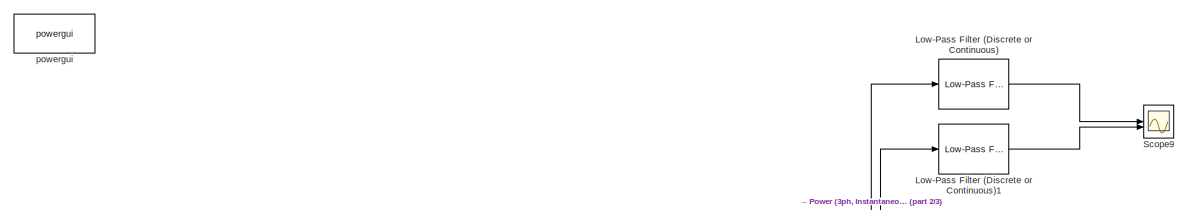
[diagram: root canvas - part 1/3, top center region]
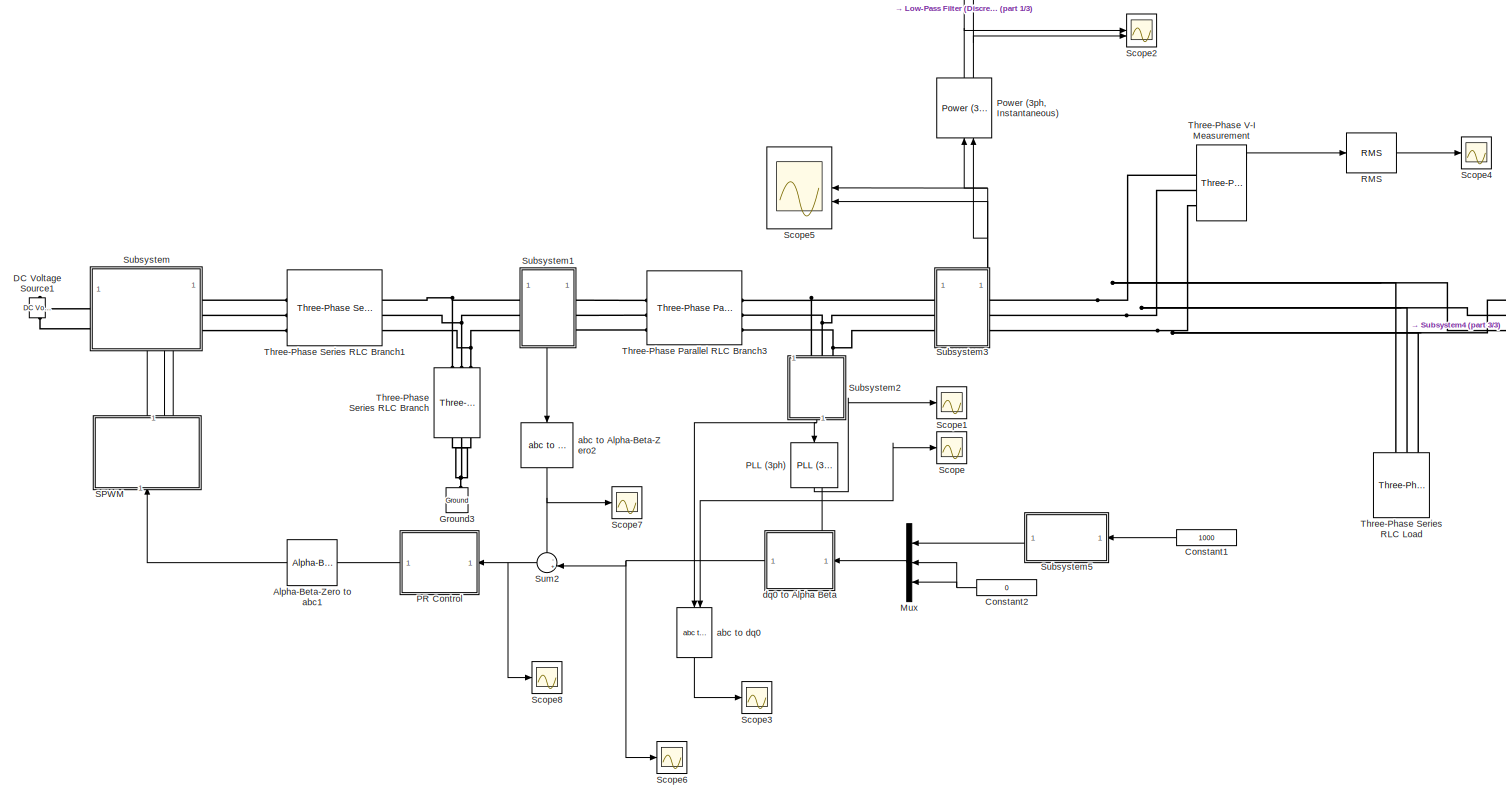
[diagram: root canvas - part 2/3, most of the canvas]
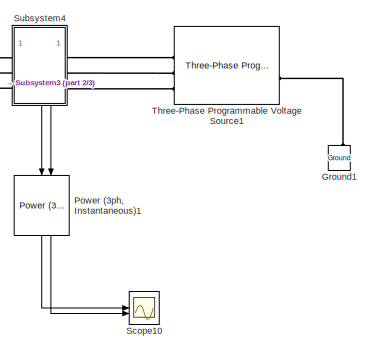
[diagram: root canvas - part 3/3, middle right region]
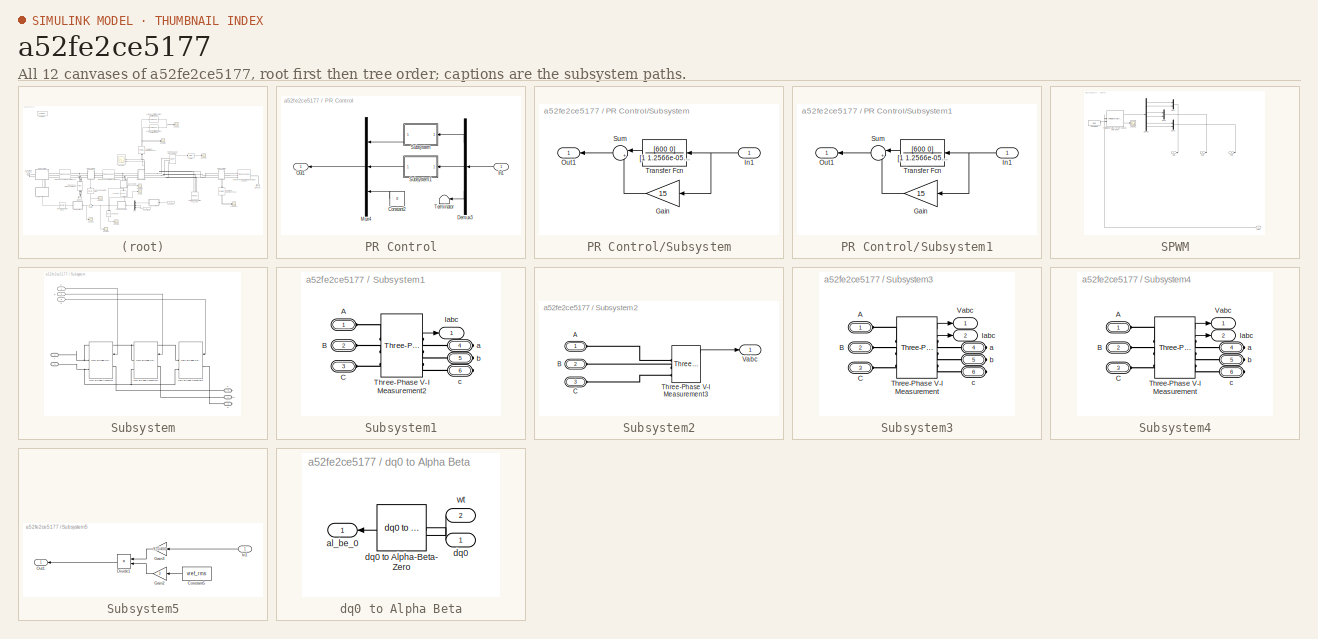
[diagram: thumbnail index - all 12 canvases of the model, root first then tree order]
MODEL slx_a52fe2ce5177
KIND model
CONFIG AbsTol = auto
CONFIG EnableMultiTasking = off
CONFIG FixedStep = 1e-6
CONFIG MaxStep = auto
CONFIG MinStep = auto
CONFIG RelTol = 1e-3
CONFIG SampleTimeConstraint = Unconstrained
CONFIG SolverName = ode4
CONFIG StartTime = 0.0
CONFIG StopTime = 0.8
BLOCK [Reference] Alpha-Beta-Zero to abc1  REF=spsAlphaBetaZerotoabcLib/Alpha-Beta-Zero
to abc
  LibrarySourceBlock = sps_lib/Control/Alpha-Beta-Zero\nto abc
  NameLocation = top
  SourceBlock = spsAlphaBetaZerotoabcLib/Alpha-Beta-Zero\nto abc
  SourceType = Alpha-Beta-Zero to abc Transformation
BLOCK [Constant] Constant1
  NameLocation = top
  Value = 1000
BLOCK [Constant] Constant2
  NameLocation = top
  Value = 0
BLOCK [Reference] DC Voltage Source1  REF=spsDCVoltageSourceLib/DC Voltage Source
  LibrarySourceBlock = sps_lib/Sources/DC Voltage Source
  SourceBlock = spsDCVoltageSourceLib/DC Voltage Source
  SourceType = DC Voltage Source
BLOCK [Reference] Ground1  REF=spsGroundLib/Ground
  LibrarySourceBlock = sps_lib/Utilities/Ground
  NameLocation = right
  SourceBlock = spsGroundLib/Ground
  SourceType = Ground
BLOCK [Reference] Ground3  REF=spsGroundLib/Ground
  LibrarySourceBlock = sps_lib/Utilities/Ground
  NameLocation = right
  SourceBlock = spsGroundLib/Ground
  SourceType = Ground
BLOCK [Reference] Low-Pass Filter (Discrete or Continuous)  REF=eeGeneralControl/Low-Pass Filter
(Discrete or Continuous)
  LibrarySourceBlock = ee_sl_lib/General Control/Low-Pass Filter\n(Discrete or Continuous)
  SourceBlock = eeGeneralControl/Low-Pass Filter\n(Discrete or Continuous)
  SourceType = Low-Pass Filter (Discrete or Continuous)
BLOCK [Reference] Low-Pass Filter (Discrete or Continuous)1  REF=eeGeneralControl/Low-Pass Filter
(Discrete or Continuous)
  LibrarySourceBlock = ee_sl_lib/General Control/Low-Pass Filter\n(Discrete or Continuous)
  SourceBlock = eeGeneralControl/Low-Pass Filter\n(Discrete or Continuous)
  SourceType = Low-Pass Filter (Discrete or Continuous)
BLOCK [Mux] Mux
  DisplayOption = bar
  Inputs = 3
  NameLocation = top
BLOCK [Reference] PLL (3ph)  REF=spsPLL3phLib/PLL
(3ph)
  LibrarySourceBlock = sps_lib/Control/PLL\n(3ph)
  NameLocation = left
  SourceBlock = spsPLL3phLib/PLL\n(3ph)
  SourceType = PLL (3ph)
BLOCK [SubSystem] PR Control
  NameLocation = top
BLOCK [Constant] PR Control/Constant2
  NameLocation = top
  Value = 0
BLOCK [Demux] PR Control/Demux3
  NameLocation = top
  Outputs = 3
BLOCK [Inport] PR Control/In1
BLOCK [Mux] PR Control/Mux4
  DisplayOption = bar
  Inputs = 3
  NameLocation = top
BLOCK [Outport] PR Control/Out1
BLOCK [SubSystem] PR Control/Subsystem
  NameLocation = top
BLOCK [Gain] PR Control/Subsystem/Gain
  Gain = 15
  NameLocation = top
BLOCK [Inport] PR Control/Subsystem/In1
BLOCK [Outport] PR Control/Subsystem/Out1
BLOCK [Sum] PR Control/Subsystem/Sum
  Inputs = |++
  NameLocation = top
BLOCK [TransferFcn] PR Control/Subsystem/Transfer Fcn
  Denominator = [1 1.2566e-05 omega^2]
  NameLocation = top
  Numerator = [600 0]
BLOCK [SubSystem] PR Control/Subsystem1
  NameLocation = top
BLOCK [Gain] PR Control/Subsystem1/Gain
  Gain = 15
  NameLocation = top
BLOCK [Inport] PR Control/Subsystem1/In1
BLOCK [Outport] PR Control/Subsystem1/Out1
BLOCK [Sum] PR Control/Subsystem1/Sum
  Inputs = |++
  NameLocation = top
BLOCK [TransferFcn] PR Control/Subsystem1/Transfer Fcn
  Denominator = [1 1.2566e-05 omega^2]
  NameLocation = top
  Numerator = [600 0]
BLOCK [Terminator] PR Control/Terminator
  NameLocation = top
BLOCK [Reference] Power (3ph, Instantaneous)  REF=spsPower3phInstantaneousLib/Power
(3ph, Instantaneous)
  LibrarySourceBlock = sps_lib/Sensors and Measurements/Power\n(3ph, Instantaneous)
  NameLocation = right
  SourceBlock = spsPower3phInstantaneousLib/Power\n(3ph, Instantaneous)
  SourceType = Power (3ph, Instantaneous)
BLOCK [Reference] Power (3ph, Instantaneous)1  REF=spsPower3phInstantaneousLib/Power
(3ph, Instantaneous)
  LibrarySourceBlock = sps_lib/Sensors and Measurements/Power\n(3ph, Instantaneous)
  NameLocation = left
  SourceBlock = spsPower3phInstantaneousLib/Power\n(3ph, Instantaneous)
  SourceType = Power (3ph, Instantaneous)
BLOCK [Reference] RMS  REF=spsRMSLib/RMS
  LibrarySourceBlock = sps_lib/Sensors and Measurements/RMS
  SourceBlock = spsRMSLib/RMS
  SourceType = RMS
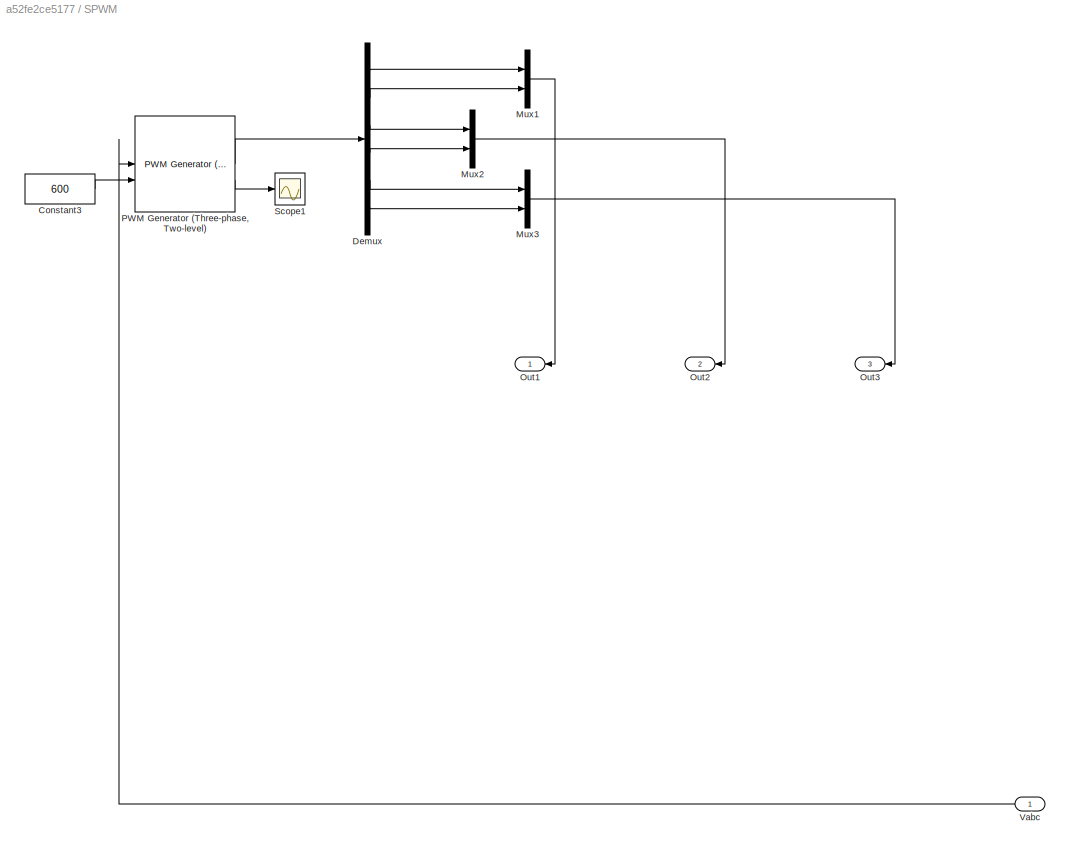
BLOCK [SubSystem] SPWM
  NameLocation = right
BLOCK [Constant] SPWM/Constant3
  Value = 600
BLOCK [Demux] SPWM/Demux
  Outputs = 6
BLOCK [Mux] SPWM/Mux1
  DisplayOption = bar
  Inputs = 2
BLOCK [Mux] SPWM/Mux2
  DisplayOption = bar
  Inputs = 2
BLOCK [Mux] SPWM/Mux3
  DisplayOption = bar
  Inputs = 2
BLOCK [Outport] SPWM/Out1
BLOCK [Outport] SPWM/Out2
  Port = 2
BLOCK [Outport] SPWM/Out3
  Port = 3
BLOCK [Reference] SPWM/PWM Generator (Three-phase, Two-level)  REF=eePwmGeneratorTwoLevel/PWM Generator
(Three-phase, Two-level)
  LibrarySourceBlock = ee_sl_lib/Pulse Width\nModulation/PWM Generator\n(Three-phase, Two-level)
  SourceBlock = eePwmGeneratorTwoLevel/PWM Generator\n(Three-phase, Two-level)
  SourceType = PWM Generator (three-phase, two-level)
BLOCK [Scope] SPWM/Scope1
  Floating = off
  NumInputPorts = 1
  ScopeSpecificationString = Simulink.scopes.TimeScopeBlockCfg('CurrentConfiguration', extmgr.ConfigurationSet(extmgr.Configuration('Core','General UI',true),extmgr.Configuration('Core','Source UI',true),extmgr.Configuration('Sources','WiredSimulink',true,'DataLoggingVariableName','ScopeData1'),extmgr.Configuration('Visuals','Time Domain',true,'SerializedDisplays',{struct('MinYLimReal','-1.07185','MaxYLimReal','1.0145','YLabe...<+1539ch>
BLOCK [Inport] SPWM/Vabc
BLOCK [Scope] Scope
  Floating = off
  NumInputPorts = 1
  ScopeSpecificationString = Simulink.scopes.TimeScopeBlockCfg('CurrentConfiguration', extmgr.ConfigurationSet(extmgr.Configuration('Core','General UI',true),extmgr.Configuration('Core','Source UI',true),extmgr.Configuration('Sources','WiredSimulink',true,'DataLoggingVariableName','ScopeData1'),extmgr.Configuration('Visuals','Time Domain',true,'SerializedDisplays',{struct('MinYLimReal','-0.27634','MaxYLimReal','6.54242','YLab...<+1420ch>
BLOCK [Scope] Scope1
  Floating = off
  NumInputPorts = 1
  ScopeSpecificationString = Simulink.scopes.TimeScopeBlockCfg('CurrentConfiguration', extmgr.ConfigurationSet(extmgr.Configuration('Core','General UI',true),extmgr.Configuration('Core','Source UI',true),extmgr.Configuration('Sources','WiredSimulink',true,'DataLoggingVariableName','ScopeData2'),extmgr.Configuration('Visuals','Time Domain',true,'SerializedDisplays',{struct('MinYLimReal','49.98929','MaxYLimReal','50.01415','YLa...<+1407ch>
BLOCK [Scope] Scope10
  Floating = off
  NumInputPorts = 2
  ScopeSpecificationString = Simulink.scopes.TimeScopeBlockCfg('CurrentConfiguration', extmgr.ConfigurationSet(extmgr.Configuration('Core','General UI',true),extmgr.Configuration('Core','Source UI',true),extmgr.Configuration('Sources','WiredSimulink',true,'DataLoggingVariableName','ScopeData2'),extmgr.Configuration('Visuals','Time Domain',true,'SerializedDisplays',{struct('MinYLimReal','-7290.06936','MaxYLimReal','10971.90077...<+1831ch>
BLOCK [Scope] Scope2
  Floating = off
  NumInputPorts = 2
  ScopeSpecificationString = Simulink.scopes.TimeScopeBlockCfg('CurrentConfiguration', extmgr.ConfigurationSet(extmgr.Configuration('Core','General UI',true),extmgr.Configuration('Core','Source UI',true),extmgr.Configuration('Sources','WiredSimulink',true,'DataLoggingVariableName','ScopeData4'),extmgr.Configuration('Visuals','Time Domain',true,'SerializedDisplays',{struct('MinYLimReal','-10179.2154','MaxYLimReal','2073.62642'...<+1878ch>
BLOCK [Scope] Scope3
  Floating = off
  NumInputPorts = 1
  ScopeSpecificationString = Simulink.scopes.TimeScopeBlockCfg('CurrentConfiguration', extmgr.ConfigurationSet(extmgr.Configuration('Core','General UI',true),extmgr.Configuration('Core','Source UI',true),extmgr.Configuration('Sources','WiredSimulink',true,'DataLoggingVariableName','ScopeData5'),extmgr.Configuration('Visuals','Time Domain',true,'SerializedDisplays',{struct('MinYLimReal','297.8584','MaxYLimReal','301.30283','YL...<+1461ch>
BLOCK [Scope] Scope4
  Floating = off
  NumInputPorts = 1
  ScopeSpecificationString = Simulink.scopes.TimeScopeBlockCfg('CurrentConfiguration', extmgr.ConfigurationSet(extmgr.Configuration('Core','General UI',true),extmgr.Configuration('Core','Source UI',true),extmgr.Configuration('Sources','WiredSimulink',true,'DataLoggingVariableName','ScopeData1'),extmgr.Configuration('Visuals','Time Domain',true,'SerializedDisplays',{struct('MinYLimReal','366.95579','MaxYLimReal','367.46138','Y...<+1472ch>
BLOCK [Scope] Scope5
  Floating = off
  NameLocation = top
  NumInputPorts = 2
  ScopeSpecificationString = Simulink.scopes.TimeScopeBlockCfg('CurrentConfiguration', extmgr.ConfigurationSet(extmgr.Configuration('Core','General UI',true),extmgr.Configuration('Core','Source UI',true),extmgr.Configuration('Sources','WiredSimulink',true,'DataLoggingVariableName','ScopeData3','DataLogging',true,'DataLoggingSaveFormat','StructureWithTime'),extmgr.Configuration('Visuals','Time Domain',true,'SerializedDisplays'...<+2680ch>
BLOCK [Scope] Scope6
  Floating = off
  NumInputPorts = 1
  ScopeSpecificationString = Simulink.scopes.TimeScopeBlockCfg('CurrentConfiguration', extmgr.ConfigurationSet(extmgr.Configuration('Core','General UI',true),extmgr.Configuration('Core','Source UI',true),extmgr.Configuration('Sources','WiredSimulink',true,'DataLoggingVariableName','ScopeData7'),extmgr.Configuration('Visuals','Time Domain',true,'SerializedDisplays',{struct('MinYLimReal','-1.13419','MaxYLimReal','1.13419','YLab...<+1453ch>
BLOCK [Scope] Scope7
  Floating = off
  NumInputPorts = 1
  ScopeSpecificationString = Simulink.scopes.TimeScopeBlockCfg('CurrentConfiguration', extmgr.ConfigurationSet(extmgr.Configuration('Core','General UI',true),extmgr.Configuration('Core','Source UI',true),extmgr.Configuration('Sources','WiredSimulink',true,'DataLoggingVariableName','ScopeData1'),extmgr.Configuration('Visuals','Time Domain',true,'SerializedDisplays',{struct('MinYLimReal','-21.92293','MaxYLimReal','23.09781','YL...<+1477ch>
BLOCK [Scope] Scope8
  Floating = off
  NumInputPorts = 1
  ScopeSpecificationString = Simulink.scopes.TimeScopeBlockCfg('CurrentConfiguration', extmgr.ConfigurationSet(extmgr.Configuration('Core','General UI',true),extmgr.Configuration('Core','Source UI',true),extmgr.Configuration('Sources','WiredSimulink',true,'DataLoggingVariableName','ScopeData2'),extmgr.Configuration('Visuals','Time Domain',true,'SerializedDisplays',{struct('MinYLimReal','-2.32177','MaxYLimReal','1.88319','YLab...<+1433ch>
BLOCK [Scope] Scope9
  Floating = off
  NumInputPorts = 2
  ScopeSpecificationString = Simulink.scopes.TimeScopeBlockCfg('CurrentConfiguration', extmgr.ConfigurationSet(extmgr.Configuration('Core','General UI',true),extmgr.Configuration('Core','Source UI',true),extmgr.Configuration('Sources','WiredSimulink',true,'DataLoggingVariableName','ScopeData1'),extmgr.Configuration('Visuals','Time Domain',true,'SerializedDisplays',{struct('MinYLimReal','-9812.26739','MaxYLimReal','2032.85442'...<+1542ch>
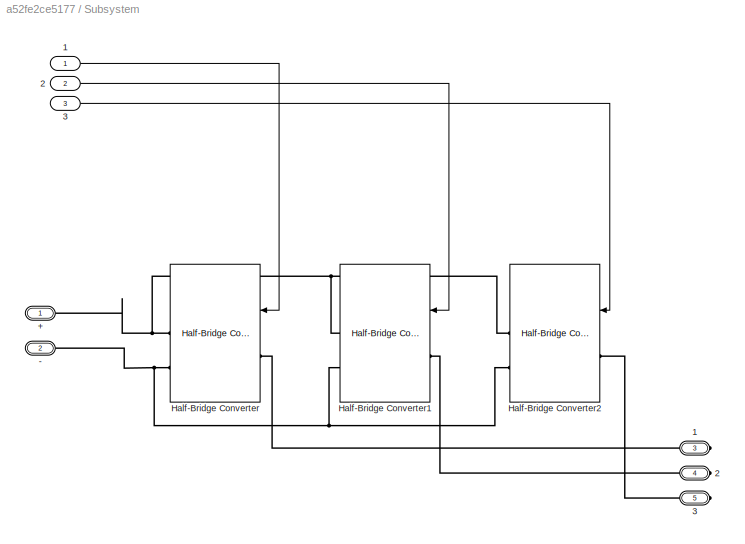
BLOCK [SubSystem] Subsystem
  PortSchema = {"entries":[{"content":{"sides":[{"content":{"connectorIds":["LConn1","LConn2"]},"type":"ConnectorPlacement.EquallySpacedRectSide","uuid":"21765539-0567-4900-b052-fb0c809e49e6"},{"content":{"connectorIds":["RConn1","RConn2","RConn3"],"side":"RIGHT"},"type":"ConnectorPlacement.EquallySpacedRectSide","uuid":"da60e673-aefd-4ef6-b5b1-e42a137712f7"},{"content":{"side":"TOP"},"type":"ConnectorPlacement....<+415ch>
BLOCK [Inport] Subsystem/  2
  Port = 2
BLOCK [Inport] Subsystem/  3
  Port = 3
BLOCK [Inport] Subsystem/ 1 
BLOCK [PMIOPort] Subsystem/+
  Side = Left
BLOCK [PMIOPort] Subsystem/-
  Port = 2
  Side = Left
BLOCK [PMIOPort] Subsystem/1
  Port = 3
  Side = Right
BLOCK [PMIOPort] Subsystem/2
  Port = 4
  Side = Right
BLOCK [PMIOPort] Subsystem/3
  Port = 5
  Side = Right
BLOCK [Reference] Subsystem/Half-Bridge Converter  REF=spsHalfBridgeConverterLib/Half-Bridge Converter
  LibrarySourceBlock = sps_lib/Power Electronics/Half-Bridge Converter
  SourceBlock = spsHalfBridgeConverterLib/Half-Bridge Converter
  SourceType = Half-Bridge Converter
BLOCK [Reference] Subsystem/Half-Bridge Converter1  REF=spsHalfBridgeConverterLib/Half-Bridge Converter
  LibrarySourceBlock = sps_lib/Power Electronics/Half-Bridge Converter
  SourceBlock = spsHalfBridgeConverterLib/Half-Bridge Converter
  SourceType = Half-Bridge Converter
BLOCK [Reference] Subsystem/Half-Bridge Converter2  REF=spsHalfBridgeConverterLib/Half-Bridge Converter
  LibrarySourceBlock = sps_lib/Power Electronics/Half-Bridge Converter
  SourceBlock = spsHalfBridgeConverterLib/Half-Bridge Converter
  SourceType = Half-Bridge Converter
BLOCK [SubSystem] Subsystem1
  PortSchema = {"entries":[{"content":{"sides":[{"content":{"connectorIds":["LConn1","LConn2","LConn3"]},"type":"ConnectorPlacement.EquallySpacedRectSide","uuid":"5e649b81-8d67-47fb-b51d-7fa1d294a0fa"},{"content":{"connectorIds":["RConn1","RConn2","RConn3"],"side":"RIGHT"},"type":"ConnectorPlacement.EquallySpacedRectSide","uuid":"b8ce6232-1e24-4620-bb1d-7a04b9b53c9d"},{"content":{"side":"TOP"},"type":"ConnectorP...<+413ch>
BLOCK [PMIOPort] Subsystem1/A
  Side = Left
BLOCK [PMIOPort] Subsystem1/B
  Port = 2
  Side = Left
BLOCK [PMIOPort] Subsystem1/C
  Port = 3
  Side = Left
BLOCK [Outport] Subsystem1/Iabc
BLOCK [Reference] Subsystem1/Three-Phase V-I Measurement2  REF=spsThreePhaseVIMeasurementLib/Three-Phase
V-I Measurement
  LibrarySourceBlock = sps_lib/Sensors and Measurements/Three-Phase\nV-I Measurement
  SourceBlock = spsThreePhaseVIMeasurementLib/Three-Phase\nV-I Measurement
  SourceType = Three-Phase VI Measurement
BLOCK [PMIOPort] Subsystem1/a
  Port = 4
  Side = Right
BLOCK [PMIOPort] Subsystem1/b
  Port = 5
  Side = Right
BLOCK [PMIOPort] Subsystem1/c
  Port = 6
  Side = Right
BLOCK [SubSystem] Subsystem2
BLOCK [PMIOPort] Subsystem2/A
  Side = Left
BLOCK [PMIOPort] Subsystem2/B
  Port = 2
  Side = Left
BLOCK [PMIOPort] Subsystem2/C
  Port = 3
  Side = Left
BLOCK [Reference] Subsystem2/Three-Phase V-I Measurement3  REF=spsThreePhaseVIMeasurementLib/Three-Phase
V-I Measurement
  LibrarySourceBlock = sps_lib/Sensors and Measurements/Three-Phase\nV-I Measurement
  SourceBlock = spsThreePhaseVIMeasurementLib/Three-Phase\nV-I Measurement
  SourceType = Three-Phase VI Measurement
BLOCK [Outport] Subsystem2/Vabc
BLOCK [SubSystem] Subsystem3
  PortSchema = {"entries":[{"content":{"sides":[{"content":{"connectorIds":["LConn1","LConn2","LConn3"]},"type":"ConnectorPlacement.EquallySpacedRectSide","uuid":"5e649b81-8d67-47fb-b51d-7fa1d294a0fa"},{"content":{"connectorIds":["RConn1","RConn2","RConn3"],"side":"RIGHT"},"type":"ConnectorPlacement.EquallySpacedRectSide","uuid":"b8ce6232-1e24-4620-bb1d-7a04b9b53c9d"},{"content":{"connectorIds":["Out1","Out2"],"...<+294ch>
BLOCK [PMIOPort] Subsystem3/A
  Side = Left
BLOCK [PMIOPort] Subsystem3/B
  Port = 2
  Side = Left
BLOCK [PMIOPort] Subsystem3/C
  Port = 3
  Side = Left
BLOCK [Outport] Subsystem3/Iabc
  Port = 2
BLOCK [Reference] Subsystem3/Three-Phase V-I Measurement  REF=spsThreePhaseVIMeasurementLib/Three-Phase
V-I Measurement
  LibrarySourceBlock = sps_lib/Sensors and Measurements/Three-Phase\nV-I Measurement
  SourceBlock = spsThreePhaseVIMeasurementLib/Three-Phase\nV-I Measurement
  SourceType = Three-Phase VI Measurement
BLOCK [Outport] Subsystem3/Vabc
BLOCK [PMIOPort] Subsystem3/a
  Port = 4
  Side = Right
BLOCK [PMIOPort] Subsystem3/b
  Port = 5
  Side = Right
BLOCK [PMIOPort] Subsystem3/c
  Port = 6
  Side = Right
BLOCK [SubSystem] Subsystem4
  NameLocation = top
  PortSchema = {"entries":[{"content":{"sides":[{"content":{"connectorIds":["LConn1","LConn2","LConn3"]},"type":"ConnectorPlacement.EquallySpacedRectSide","uuid":"5e649b81-8d67-47fb-b51d-7fa1d294a0fa"},{"content":{"connectorIds":["RConn1","RConn2","RConn3"],"side":"RIGHT"},"type":"ConnectorPlacement.EquallySpacedRectSide","uuid":"b8ce6232-1e24-4620-bb1d-7a04b9b53c9d"},{"content":{"connectorIds":["Out1","Out2"],"...<+294ch>
BLOCK [PMIOPort] Subsystem4/A
  Side = Left
BLOCK [PMIOPort] Subsystem4/B
  Port = 2
  Side = Left
BLOCK [PMIOPort] Subsystem4/C
  Port = 3
  Side = Left
BLOCK [Outport] Subsystem4/Iabc
  Port = 2
BLOCK [Reference] Subsystem4/Three-Phase V-I Measurement  REF=spsThreePhaseVIMeasurementLib/Three-Phase
V-I Measurement
  LibrarySourceBlock = sps_lib/Sensors and Measurements/Three-Phase\nV-I Measurement
  SourceBlock = spsThreePhaseVIMeasurementLib/Three-Phase\nV-I Measurement
  SourceType = Three-Phase VI Measurement
BLOCK [Outport] Subsystem4/Vabc
BLOCK [PMIOPort] Subsystem4/a
  Port = 4
  Side = Right
BLOCK [PMIOPort] Subsystem4/b
  Port = 5
  Side = Right
BLOCK [PMIOPort] Subsystem4/c
  Port = 6
  Side = Right
BLOCK [SubSystem] Subsystem5
  NameLocation = top
BLOCK [Constant] Subsystem5/Constant5
  NameLocation = top
  Value = vref_rms
BLOCK [Product] Subsystem5/Divide1
  Inputs = */
  NameLocation = top
BLOCK [Gain] Subsystem5/Gain2
  Gain = 3
  NameLocation = top
BLOCK [Gain] Subsystem5/Gain3
  Gain = 975/400
  NameLocation = top
BLOCK [Inport] Subsystem5/In1
BLOCK [Outport] Subsystem5/Out1
BLOCK [Sum] Sum2
  Inputs = -+|
  NameLocation = top
BLOCK [Reference] Three-Phase Parallel RLC Branch3  REF=spsThreePhaseParallelRLCBranchLib/Three-Phase
Parallel RLC Branch
  AttributesFormatString = \n
  LibrarySourceBlock = sps_lib/Passives/Three-Phase\nParallel RLC Branch
  SourceBlock = spsThreePhaseParallelRLCBranchLib/Three-Phase\nParallel RLC Branch
  SourceType = Three-Phase Parallel RLC Branch
BLOCK [Reference] Three-Phase Programmable Voltage Source1  REF=spsThreePhaseProgrammableVoltageSourceLib/Three-Phase
Programmable
Voltage Source
  LibrarySourceBlock = sps_lib/Sources/Three-Phase\nProgrammable\nVoltage Source
  NameLocation = top
  SourceBlock = spsThreePhaseProgrammableVoltageSourceLib/Three-Phase\nProgrammable\nVoltage Source
  SourceType = Three-Phase Programmable Voltage Source
BLOCK [Reference] Three-Phase Series RLC Branch  REF=spsThreePhaseSeriesRLCBranchLib/Three-Phase
Series RLC Branch
  AttributesFormatString = \n
  LibrarySourceBlock = sps_lib/Passives/Three-Phase\nSeries RLC Branch
  NameLocation = left
  SourceBlock = spsThreePhaseSeriesRLCBranchLib/Three-Phase\nSeries RLC Branch
  SourceType = Three-Phase Series RLC Branch
BLOCK [Reference] Three-Phase Series RLC Branch1  REF=spsThreePhaseSeriesRLCBranchLib/Three-Phase
Series RLC Branch
  AttributesFormatString = \n
  LibrarySourceBlock = sps_lib/Passives/Three-Phase\nSeries RLC Branch
  SourceBlock = spsThreePhaseSeriesRLCBranchLib/Three-Phase\nSeries RLC Branch
  SourceType = Three-Phase Series RLC Branch
BLOCK [Reference] Three-Phase Series RLC Load  REF=spsThreePhaseSeriesRLCLoadLib/Three-Phase
Series RLC Load
  AttributesFormatString = \n
  LibrarySourceBlock = sps_lib/Passives/Three-Phase\nSeries RLC Load
  SourceBlock = spsThreePhaseSeriesRLCLoadLib/Three-Phase\nSeries RLC Load
  SourceType = Three-Phase Series RLC Load
BLOCK [Reference] Three-Phase V-I Measurement  REF=spsThreePhaseVIMeasurementLib/Three-Phase
V-I Measurement
  LibrarySourceBlock = sps_lib/Sensors and Measurements/Three-Phase\nV-I Measurement
  SourceBlock = spsThreePhaseVIMeasurementLib/Three-Phase\nV-I Measurement
  SourceType = Three-Phase VI Measurement
BLOCK [Reference] abc to Alpha-Beta-Zero2  REF=spsabctoAlphaBetaZeroLib/abc to
Alpha-Beta-Zero
  LibrarySourceBlock = sps_lib/Control/abc to\nAlpha-Beta-Zero
  NameLocation = left
  SourceBlock = spsabctoAlphaBetaZeroLib/abc to\nAlpha-Beta-Zero
  SourceType = abc to Alpha-Beta-Zero Transformation
BLOCK [Reference] abc to dq0  REF=spsabctodq0Lib/abc to dq0
  LibrarySourceBlock = sps_lib/Control/abc to dq0
  NameLocation = left
  SourceBlock = spsabctodq0Lib/abc to dq0
  SourceType = abc to dq0 Transformation
BLOCK [SubSystem] dq0 to Alpha Beta
  PortSchema = {"entries":[{"content":{"sides":[{"content":{"connectorIds":["In1"]},"type":"ConnectorPlacement.EquallySpacedRectSide","uuid":"2957cf7a-c1c3-4848-9407-b6952c647f30"},{"content":{"connectorIds":["Out1"],"side":"RIGHT"},"type":"ConnectorPlacement.EquallySpacedRectSide","uuid":"7a8beffb-254d-479d-a697-96ba44ae1442"},{"content":{"connectorIds":["In2"],"side":"TOP"},"type":"ConnectorPlacement.EquallySp...<+245ch>
BLOCK [Outport] dq0 to Alpha Beta/al_be_0
BLOCK [Inport] dq0 to Alpha Beta/dq0
BLOCK [Reference] dq0 to Alpha Beta/dq0 to Alpha-Beta-Zero  REF=spsdq0toAlphaBetaZeroLib/dq0 to
Alpha-Beta-Zero
  LibrarySourceBlock = sps_lib/Control/dq0 to\nAlpha-Beta-Zero
  NameLocation = top
  SourceBlock = spsdq0toAlphaBetaZeroLib/dq0 to\nAlpha-Beta-Zero
  SourceType = dq0 to Alpha-Beta-Zero Transformation
BLOCK [Inport] dq0 to Alpha Beta/wt
  Port = 2
BLOCK [Reference] powergui  REF=spspowerguiLib/powergui
  LibrarySourceBlock = sps_lib/powergui
  Priority = 1
  SourceBlock = spspowerguiLib/powergui
  SourceType = PSB option menu block
LINE Alpha-Beta-Zero to abc1:1 -> SPWM:1
LINE Constant1:1 -> Subsystem5:1
NET Constant2:1 -> Mux:2, Mux:3
LINE Low-Pass Filter (Discrete or Continuous)1:1 -> Scope9:2
LINE Low-Pass Filter (Discrete or Continuous):1 -> Scope9:1
LINE Mux:1 -> dq0 to Alpha Beta:1
LINE PLL (3ph):1 -> Scope1:1
NET PLL (3ph):2 -> Scope:1, abc to dq0:2, dq0 to Alpha Beta:2
LINE PR Control/Constant2:1 -> PR Control/Mux4:3
LINE PR Control/Demux3:1 -> PR Control/Subsystem:1
LINE PR Control/Demux3:2 -> PR Control/Subsystem1:1
LINE PR Control/Demux3:3 -> PR Control/Terminator:1
LINE PR Control/In1:1 -> PR Control/Demux3:1
LINE PR Control/Mux4:1 -> PR Control/Out1:1
LINE PR Control/Subsystem/Gain:1 -> PR Control/Subsystem/Sum:2
NET PR Control/Subsystem/In1:1 -> PR Control/Subsystem/Gain:1, PR Control/Subsystem/Transfer Fcn:1
LINE PR Control/Subsystem/Sum:1 -> PR Control/Subsystem/Out1:1
LINE PR Control/Subsystem/Transfer Fcn:1 -> PR Control/Subsystem/Sum:1
LINE PR Control/Subsystem1/Gain:1 -> PR Control/Subsystem1/Sum:2
NET PR Control/Subsystem1/In1:1 -> PR Control/Subsystem1/Gain:1, PR Control/Subsystem1/Transfer Fcn:1
LINE PR Control/Subsystem1/Sum:1 -> PR Control/Subsystem1/Out1:1
LINE PR Control/Subsystem1/Transfer Fcn:1 -> PR Control/Subsystem1/Sum:1
LINE PR Control/Subsystem1:1 -> PR Control/Mux4:2
LINE PR Control/Subsystem:1 -> PR Control/Mux4:1
LINE PR Control:1 -> Alpha-Beta-Zero to abc1:1
LINE Power (3ph, Instantaneous)1:1 -> Scope10:1
LINE Power (3ph, Instantaneous)1:2 -> Scope10:2
NET Power (3ph, Instantaneous):1 -> Low-Pass Filter (Discrete or Continuous):1, Scope2:1
NET Power (3ph, Instantaneous):2 -> Low-Pass Filter (Discrete or Continuous)1:1, Scope2:2
LINE RMS:1 -> Scope4:1
LINE SPWM/Constant3:1 -> SPWM/PWM Generator (Three-phase, Two-level):2
LINE SPWM/Demux:1 -> SPWM/Mux1:1
LINE SPWM/Demux:2 -> SPWM/Mux1:2
LINE SPWM/Demux:3 -> SPWM/Mux2:1
LINE SPWM/Demux:4 -> SPWM/Mux2:2
LINE SPWM/Demux:5 -> SPWM/Mux3:1
LINE SPWM/Demux:6 -> SPWM/Mux3:2
LINE SPWM/Mux1:1 -> SPWM/Out1:1
LINE SPWM/Mux2:1 -> SPWM/Out2:1
LINE SPWM/Mux3:1 -> SPWM/Out3:1
LINE SPWM/PWM Generator (Three-phase, Two-level):1 -> SPWM/Demux:1
LINE SPWM/PWM Generator (Three-phase, Two-level):2 -> SPWM/Scope1:1
LINE SPWM/Vabc:1 -> SPWM/PWM Generator (Three-phase, Two-level):1
LINE SPWM:1 -> Subsystem:1
LINE SPWM:2 -> Subsystem:2
LINE SPWM:3 -> Subsystem:3
LINE Subsystem/  2:1 -> Subsystem/Half-Bridge Converter1:1
LINE Subsystem/  3:1 -> Subsystem/Half-Bridge Converter2:1
LINE Subsystem/ 1 :1 -> Subsystem/Half-Bridge Converter:1
LINE Subsystem1/Three-Phase V-I Measurement2:2 -> Subsystem1/Iabc:1
LINE Subsystem1:1 -> abc to Alpha-Beta-Zero2:1
LINE Subsystem2/Three-Phase V-I Measurement3:1 -> Subsystem2/Vabc:1
NET Subsystem2:1 -> PLL (3ph):1, abc to dq0:1
LINE Subsystem3/Three-Phase V-I Measurement:1 -> Subsystem3/Vabc:1
LINE Subsystem3/Three-Phase V-I Measurement:2 -> Subsystem3/Iabc:1
NET Subsystem3:1 -> Power (3ph, Instantaneous):1, Scope5:1
NET Subsystem3:2 -> Power (3ph, Instantaneous):2, Scope5:2
LINE Subsystem4/Three-Phase V-I Measurement:1 -> Subsystem4/Vabc:1
LINE Subsystem4/Three-Phase V-I Measurement:2 -> Subsystem4/Iabc:1
LINE Subsystem4:1 -> Power (3ph, Instantaneous)1:1
LINE Subsystem4:2 -> Power (3ph, Instantaneous)1:2
LINE Subsystem5/Constant5:1 -> Subsystem5/Gain2:1
LINE Subsystem5/Divide1:1 -> Subsystem5/Out1:1
LINE Subsystem5/Gain2:1 -> Subsystem5/Divide1:2
LINE Subsystem5/Gain3:1 -> Subsystem5/Divide1:1
LINE Subsystem5/In1:1 -> Subsystem5/Gain3:1
LINE Subsystem5:1 -> Mux:1
NET Sum2:1 -> PR Control:1, Scope8:1
LINE Three-Phase V-I Measurement:1 -> RMS:1
NET abc to Alpha-Beta-Zero2:1 -> Scope7:1, Sum2:1
LINE abc to dq0:1 -> Scope3:1
LINE dq0 to Alpha Beta/dq0 to Alpha-Beta-Zero:1 -> dq0 to Alpha Beta/al_be_0:1
LINE dq0 to Alpha Beta/dq0:1 -> dq0 to Alpha Beta/dq0 to Alpha-Beta-Zero:1
LINE dq0 to Alpha Beta/wt:1 -> dq0 to Alpha Beta/dq0 to Alpha-Beta-Zero:2
NET dq0 to Alpha Beta:1 -> Scope6:1, Sum2:2
PLINE DC Voltage Source1:LConn1 -- Subsystem:LConn2
PLINE DC Voltage Source1:RConn1 -- Subsystem:LConn1
PLINE Ground1:LConn1 -- Three-Phase Programmable Voltage Source1:LConn1
PNET net1: Ground3:LConn1 -- Three-Phase Series RLC Branch:RConn1 -- Three-Phase Series RLC Branch:RConn2 -- Three-Phase Series RLC Branch:RConn3
PNET net2: Subsystem/+:RConn1 -- Subsystem/Half-Bridge Converter1:RConn1 -- Subsystem/Half-Bridge Converter2:RConn1 -- Subsystem/Half-Bridge Converter:RConn1
PNET net3: Subsystem/-:RConn1 -- Subsystem/Half-Bridge Converter1:RConn2 -- Subsystem/Half-Bridge Converter2:RConn2 -- Subsystem/Half-Bridge Converter:RConn2
PLINE Subsystem/1:RConn1 -- Subsystem/Half-Bridge Converter:LConn1
PLINE Subsystem/2:RConn1 -- Subsystem/Half-Bridge Converter1:LConn1
PLINE Subsystem/3:RConn1 -- Subsystem/Half-Bridge Converter2:LConn1
PLINE Subsystem1/A:RConn1 -- Subsystem1/Three-Phase V-I Measurement2:LConn1
PLINE Subsystem1/B:RConn1 -- Subsystem1/Three-Phase V-I Measurement2:LConn2
PLINE Subsystem1/C:RConn1 -- Subsystem1/Three-Phase V-I Measurement2:LConn3
PLINE Subsystem1/Three-Phase V-I Measurement2:RConn1 -- Subsystem1/a:RConn1
PLINE Subsystem1/Three-Phase V-I Measurement2:RConn2 -- Subsystem1/b:RConn1
PLINE Subsystem1/Three-Phase V-I Measurement2:RConn3 -- Subsystem1/c:RConn1
PNET net4: Subsystem1:LConn1 -- Three-Phase Series RLC Branch1:RConn1 -- Three-Phase Series RLC Branch:LConn1
PNET net5: Subsystem1:LConn2 -- Three-Phase Series RLC Branch1:RConn2 -- Three-Phase Series RLC Branch:LConn2
PNET net6: Subsystem1:LConn3 -- Three-Phase Series RLC Branch1:RConn3 -- Three-Phase Series RLC Branch:LConn3
PLINE Subsystem1:RConn1 -- Three-Phase Parallel RLC Branch3:LConn1
PLINE Subsystem1:RConn2 -- Three-Phase Parallel RLC Branch3:LConn2
PLINE Subsystem1:RConn3 -- Three-Phase Parallel RLC Branch3:LConn3
PLINE Subsystem2/A:RConn1 -- Subsystem2/Three-Phase V-I Measurement3:LConn1
PLINE Subsystem2/B:RConn1 -- Subsystem2/Three-Phase V-I Measurement3:LConn2
PLINE Subsystem2/C:RConn1 -- Subsystem2/Three-Phase V-I Measurement3:LConn3
PNET net7: Subsystem2:LConn1 -- Subsystem3:LConn1 -- Three-Phase Parallel RLC Branch3:RConn1
PNET net8: Subsystem2:LConn2 -- Subsystem3:LConn2 -- Three-Phase Parallel RLC Branch3:RConn2
PNET net9: Subsystem2:LConn3 -- Subsystem3:LConn3 -- Three-Phase Parallel RLC Branch3:RConn3
PLINE Subsystem3/A:RConn1 -- Subsystem3/Three-Phase V-I Measurement:LConn1
PLINE Subsystem3/B:RConn1 -- Subsystem3/Three-Phase V-I Measurement:LConn2
PLINE Subsystem3/C:RConn1 -- Subsystem3/Three-Phase V-I Measurement:LConn3
PLINE Subsystem3/Three-Phase V-I Measurement:RConn1 -- Subsystem3/a:RConn1
PLINE Subsystem3/Three-Phase V-I Measurement:RConn2 -- Subsystem3/b:RConn1
PLINE Subsystem3/Three-Phase V-I Measurement:RConn3 -- Subsystem3/c:RConn1
PNET net10: Subsystem3:RConn1 -- Subsystem4:RConn3 -- Three-Phase Series RLC Load:LConn1 -- Three-Phase V-I Measurement:LConn1
PNET net11: Subsystem3:RConn2 -- Subsystem4:RConn2 -- Three-Phase Series RLC Load:LConn2 -- Three-Phase V-I Measurement:LConn2
PNET net12: Subsystem3:RConn3 -- Subsystem4:RConn1 -- Three-Phase Series RLC Load:LConn3 -- Three-Phase V-I Measurement:LConn3
PLINE Subsystem4/A:RConn1 -- Subsystem4/Three-Phase V-I Measurement:LConn1
PLINE Subsystem4/B:RConn1 -- Subsystem4/Three-Phase V-I Measurement:LConn2
PLINE Subsystem4/C:RConn1 -- Subsystem4/Three-Phase V-I Measurement:LConn3
PLINE Subsystem4/Three-Phase V-I Measurement:RConn1 -- Subsystem4/a:RConn1
PLINE Subsystem4/Three-Phase V-I Measurement:RConn2 -- Subsystem4/b:RConn1
PLINE Subsystem4/Three-Phase V-I Measurement:RConn3 -- Subsystem4/c:RConn1
PLINE Subsystem4:LConn1 -- Three-Phase Programmable Voltage Source1:RConn3
PLINE Subsystem4:LConn2 -- Three-Phase Programmable Voltage Source1:RConn2
PLINE Subsystem4:LConn3 -- Three-Phase Programmable Voltage Source1:RConn1
PLINE Subsystem:RConn1 -- Three-Phase Series RLC Branch1:LConn1
PLINE Subsystem:RConn2 -- Three-Phase Series RLC Branch1:LConn2
PLINE Subsystem:RConn3 -- Three-Phase Series RLC Branch1:LConn3
note: NET lines group one-source signal fan-out (src -> all destinations, sorted); 1:1 wires keep LINE; PNET lines group multi-terminal physical nets as a canonical sorted terminal list (undirected conserving connections); 2-terminal nets keep the pairwise PLINE form
